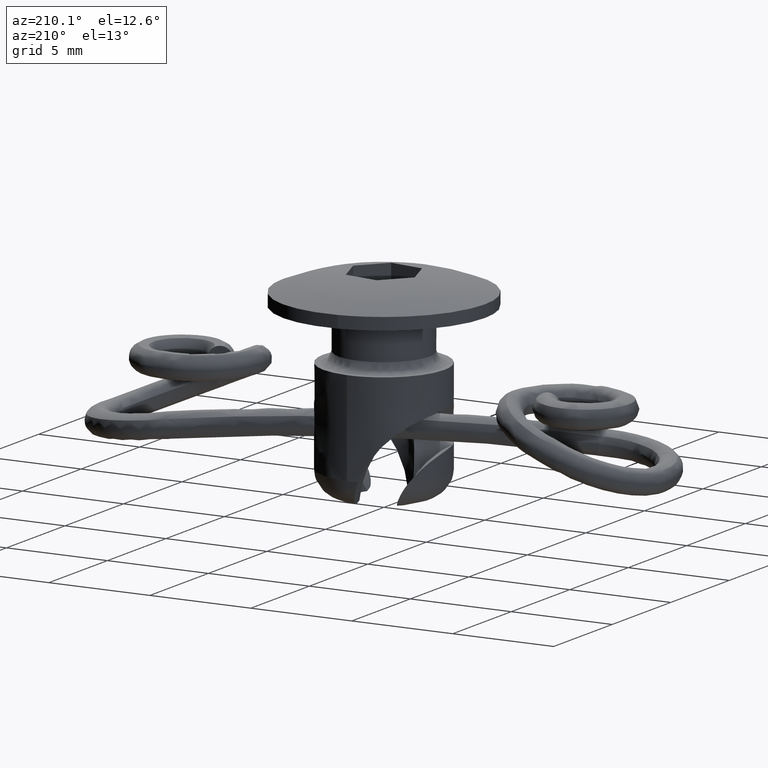
[diagram: clean part render]
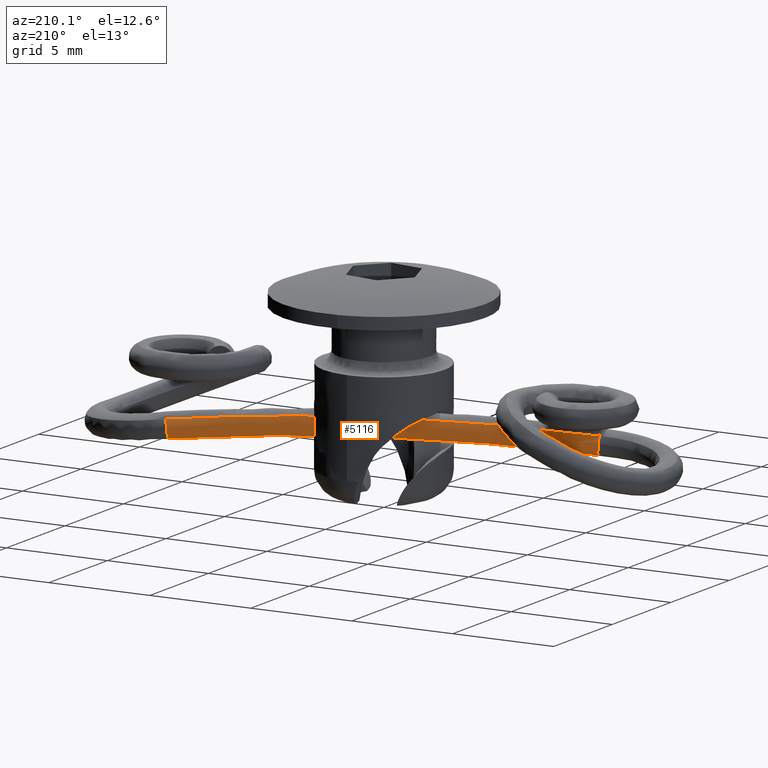
[diagram: same view with one face highlighted and labeled with its STEP entity id]
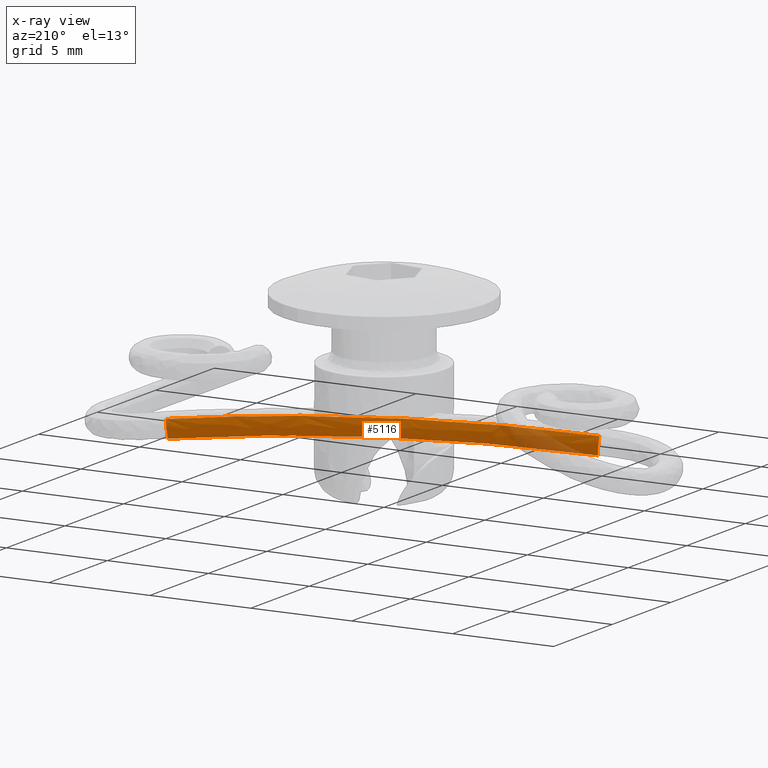
[diagram: x-ray of the same camera — body ghosted, the highlighted face saturated]
A machine part, auxiliary view. The second image highlights one B-rep face of the part: STEP entity #5116.
The next image is the same camera in x-ray: the body ghosted, the highlighted face saturated — about 12% of this face is hidden behind the body in this view.
In plain terms, the highlighted face is a freeform B-spline surface patch.
Its self-contained STEP definition (entity closure, byte-faithful):
#4762=CARTESIAN_POINT('',(-9.052727951586524,-2.789468148499481,-0.070616102418248));
#4763=VERTEX_POINT('',#4762);
#4789=CARTESIAN_POINT('',(-8.878890207489556,-2.979421435673762,-0.980622937705144));
#4790=VERTEX_POINT('',#4789);
#4791=CARTESIAN_POINT('',(-9.052727951586524,-2.789468148499481,-0.070616102418248));
#4792=CARTESIAN_POINT('',(-9.055303894186736,-2.781025139370642,-0.082041355090307));
#4793=CARTESIAN_POINT('',(-9.057655208501517,-2.773014176170491,-0.093816720211530));
#4794=CARTESIAN_POINT('',(-9.065491694534806,-2.745092895402590,-0.138471446225786));
#4795=CARTESIAN_POINT('',(-9.069622604483348,-2.727681889790864,-0.173928171500281));
#4796=CARTESIAN_POINT('',(-9.074497617147349,-2.700119379930463,-0.246820405723112));
#4797=CARTESIAN_POINT('',(-9.075312601725335,-2.689779901737084,-0.284374014896111));
#4798=CARTESIAN_POINT('',(-9.073906652724226,-2.675540818789088,-0.361553451565428));
#4799=CARTESIAN_POINT('',(-9.071679877110494,-2.671789767808547,-0.400580635368091));
#4800=CARTESIAN_POINT('',(-9.064486917477431,-2.670650419221944,-0.478062328582748));
#4801=CARTESIAN_POINT('',(-9.059464816484208,-2.673271360659927,-0.517039078351167));
#4802=CARTESIAN_POINT('',(-9.046793343747401,-2.684839438097906,-0.593452476464065));
#4803=CARTESIAN_POINT('',(-9.039231247496117,-2.693673925689496,-0.630508755140494));
#4804=CARTESIAN_POINT('',(-9.026017484765633,-2.711578687216341,-0.684338373601555));
#4805=CARTESIAN_POINT('',(-9.021298522370676,-2.718328926364071,-0.701986669278097));
#4806=CARTESIAN_POINT('',(-9.011192168334752,-2.733492089435803,-0.736656212818848));
#4807=CARTESIAN_POINT('',(-9.005790862180939,-2.741931719649130,-0.753699394581058));
#4808=CARTESIAN_POINT('',(-8.988926022088217,-2.769253717632536,-0.802619789221144));
#4809=CARTESIAN_POINT('',(-8.976695742826248,-2.790280832417077,-0.832726694296828));
#4810=CARTESIAN_POINT('',(-8.950122474991138,-2.838355097718130,-0.887574973368662));
#4811=CARTESIAN_POINT('',(-8.935570083044322,-2.865838222372753,-0.912495712723965));
#4812=CARTESIAN_POINT('',(-8.907101721985805,-2.921677845969599,-0.952064523967577));
#4813=CARTESIAN_POINT('',(-8.893191719525660,-2.949778142931533,-0.967786186371771));
#4814=CARTESIAN_POINT('',(-8.878890207489556,-2.979421435673762,-0.980622937705144));
#4815=B_SPLINE_CURVE_WITH_KNOTS('',3,(#4791,#4792,#4793,#4794,#4795,#4796,#4797,#4798,#4799,#4800,#4801,#4802,#4803,#4804,#4805,#4806,#4807,#4808,#4809,#4810,#4811,#4812,#4813,#4814),.UNSPECIFIED.,.F.,.U.,(4,2,2,2,2,2,2,2,2,2,2,4),(0.289206690772922,0.312500000000002,0.375000000000002,0.437500000000002,0.500000000000001,0.562500000000001,0.625000000000001,0.656250000000000,0.687500000000000,0.750000000000001,0.812500000000001,0.868849524865877),.UNSPECIFIED.);
#4816=EDGE_CURVE('',#4763,#4790,#4815,.T.);
#5011=CARTESIAN_POINT('',(-9.006048405365958,-3.025703383126476,-0.993116206837282));
#5012=CARTESIAN_POINT('',(-9.023408879969612,-2.982957046913163,-0.974762413088343));
#5013=CARTESIAN_POINT('',(-9.040464384676396,-2.942672530215936,-0.950389044187958));
#5014=CARTESIAN_POINT('',(-9.158356369705112,-2.678580929267353,-0.728664816093792));
#5015=CARTESIAN_POINT('',(-9.210628444148938,-2.642666145198155,-0.329432377547722));
#5016=CARTESIAN_POINT('',(-9.166448144306321,-2.830858420373813,-0.081789153421733));
#5017=CARTESIAN_POINT('',(-8.958654617775125,-3.008453467800313,-0.988459584093610));
#5018=CARTESIAN_POINT('',(-8.976015727778529,-2.965707362853427,-0.970105852763225));
#5019=CARTESIAN_POINT('',(-8.993072076279882,-2.925423153272082,-0.945732566754391));
#5020=CARTESIAN_POINT('',(-9.110971737296730,-2.661334346152645,-0.724009092731750));
#5021=CARTESIAN_POINT('',(-9.163257632977611,-2.625424592598648,-0.324778011987457));
#5022=CARTESIAN_POINT('',(-9.119085906424822,-2.813619988194330,-0.077135630120394));
#5023=CARTESIAN_POINT('',(-8.911141256667380,-2.991160031305046,-0.983791186747881));
#5024=CARTESIAN_POINT('',(-8.928507019586782,-2.948415619879843,-0.965437912561471));
#5025=CARTESIAN_POINT('',(-8.945569547041840,-2.908133659252076,-0.941065233630388));
#5026=CARTESIAN_POINT('',(-9.063525417923575,-2.644065310835329,-0.719347282200259));
#5027=CARTESIAN_POINT('',(-9.115912524026395,-2.608192394835306,-0.320126145390967));
#5028=CARTESIAN_POINT('',(-9.071803578134297,-2.796410640706015,-0.072489931759001));
#5029=CARTESIAN_POINT('',(-3.009275934053959,-0.843058302020052,-0.403930297025632));
#5030=CARTESIAN_POINT('',(-3.026108121263782,-0.800119685061273,-0.385524602030129));
#5031=CARTESIAN_POINT('',(-3.042462073816853,-0.759579824449593,-0.361082309070787));
#5032=CARTESIAN_POINT('',(-3.153972047792050,-0.493165363146523,-0.138731076391322));
#5033=CARTESIAN_POINT('',(-3.194752794211010,-0.453068080790566,0.261630348858755));
#5034=CARTESIAN_POINT('',(-3.143444442525897,-0.638665959168025,0.509973888353399));
#5035=CARTESIAN_POINT('',(2.847146821280134,1.288503697545641,-0.403930275851332));
#5036=CARTESIAN_POINT('',(2.832440745327959,1.332216155149701,-0.385524588111543));
#5037=CARTESIAN_POINT('',(2.818910214355942,1.373783656422345,-0.361082302678307));
#5038=CARTESIAN_POINT('',(2.733084871869665,1.649546552212105,-0.138731125361762));
#5039=CARTESIAN_POINT('',(2.738551390498805,1.706476450121820,0.261630256467083));
#5040=CARTESIAN_POINT('',(2.818546846870800,1.531319816303081,0.509973795958792));
#5041=CARTESIAN_POINT('',(8.749045023024626,3.436617393848361,-0.983794385239148));
#5042=CARTESIAN_POINT('',(8.734872525438686,3.480524057953002,-0.965441122242346));
#5043=CARTESIAN_POINT('',(8.722050572988499,3.522349460527206,-0.941068455002746));
#5044=CARTESIAN_POINT('',(8.642671160909199,3.800458481398114,-0.719350590251441));
#5045=CARTESIAN_POINT('',(8.659744101986583,3.861612768508496,-0.320129525015097));
#5046=CARTESIAN_POINT('',(8.746939004260899,3.689076516779222,-0.072493315323706));
#5047=CARTESIAN_POINT('',(8.796591632121672,3.453922931613167,-0.988466049521667));
#5048=CARTESIAN_POINT('',(8.782414472168643,3.497827898756210,-0.970112328437046));
#5049=CARTESIAN_POINT('',(8.769586328213560,3.539651047808579,-0.945739052870696));
#5050=CARTESIAN_POINT('',(8.690150592088969,3.817739568418553,-0.724015654192115));
#5051=CARTESIAN_POINT('',(8.707122117143175,3.878856943142273,-0.324784624729061));
#5052=CARTESIAN_POINT('',(8.794254111217777,3.706297794717606,-0.077142234271913));
#5053=CARTESIAN_POINT('',(8.844018232821425,3.471184789925521,-0.993125896270101));
#5054=CARTESIAN_POINT('',(8.829840442628754,3.515089527680263,-0.974772113264880));
#5055=CARTESIAN_POINT('',(8.817011461731369,3.556912372110769,-0.950398755470855));
#5056=CARTESIAN_POINT('',(8.737568111952223,3.834998121579142,-0.728674608776211));
#5057=CARTESIAN_POINT('',(8.754525928000028,3.896110506636250,-0.329442232484229));
#5058=CARTESIAN_POINT('',(8.841649418398399,3.723548263128823,-0.081799006607888));
#5059=B_SPLINE_SURFACE_WITH_KNOTS('',3,3,((#5011,#5017,#5023,#5029,#5035,#5041,#5047,#5053),(#5012,#5018,#5024,#5030,#5036,#5042,#5048,#5054),(#5013,#5019,#5025,#5031,#5037,#5043,#5049,#5055),(#5014,#5020,#5026,#5032,#5038,#5044,#5050,#5056),(#5015,#5021,#5027,#5033,#5039,#5045,#5051,#5057),(#5016,#5022,#5028,#5034,#5040,#5046,#5052,#5058)),.UNSPECIFIED.,.F.,.F.,.U.,(4,2,4),(4,2,2,4),(0.0,0.150795954072507,1.093270667025673),(0.0,0.152517005416773,19.051378743920470,19.204001881067398),.UNSPECIFIED.);
#5060=ORIENTED_EDGE('',*,*,#4816,.F.);
#5061=CARTESIAN_POINT('',(8.671416379380403,3.661589230002595,-0.065078477133593));
#5062=VERTEX_POINT('',#5061);
#5063=CARTESIAN_POINT('',(-9.052727951586524,-2.789468148499481,-0.070616102418248));
#5064=CARTESIAN_POINT('',(-9.043272263840759,-2.786026561528491,-0.069687063938073));
#5065=CARTESIAN_POINT('',(-9.033811555115664,-2.782583147071497,-0.068757537969981));
#5066=CARTESIAN_POINT('',(-3.152787523197503,-0.642066642245922,0.509055434655595));
#5067=CARTESIAN_POINT('',(2.799603282181113,1.524425229400120,0.509971669903831));
#5068=CARTESIAN_POINT('',(8.671416379380403,3.661589230002595,-0.065078477133593));
#5069=B_SPLINE_CURVE_WITH_KNOTS('',3,(#5063,#5064,#5065,#5066,#5067,#5068),.UNSPECIFIED.,.F.,.U.,(4,2,4),(-0.001609919353250,0.0,0.998411306176415),.UNSPECIFIED.);
#5070=EDGE_CURVE('',#4763,#5062,#5069,.T.);
#5071=ORIENTED_EDGE('',*,*,#5070,.T.);
#5072=CARTESIAN_POINT('',(8.688269160099740,3.414496775028216,-0.977824043489854));
#5073=VERTEX_POINT('',#5072);
#5074=CARTESIAN_POINT('',(8.688269160099740,3.414496775028216,-0.977824043489854));
#5075=CARTESIAN_POINT('',(8.686803652539519,3.418220948790992,-0.976208352685754));
#5076=CARTESIAN_POINT('',(8.685348941728051,3.421931488650999,-0.974546849793886));
#5077=CARTESIAN_POINT('',(8.670781856184854,3.459230205052796,-0.957313120259023));
#5078=CARTESIAN_POINT('',(8.658825922371248,3.491005036519455,-0.938303806894087));
#5079=CARTESIAN_POINT('',(8.637364914682831,3.550688228164610,-0.892928872354580));
#5080=CARTESIAN_POINT('',(8.627856793560131,3.578679377512856,-0.866235594309530));
#5081=CARTESIAN_POINT('',(8.612200644378831,3.627994771059209,-0.808408975505420));
#5082=CARTESIAN_POINT('',(8.605886088331467,3.649759098608439,-0.777023343236598));
#5083=CARTESIAN_POINT('',(8.598526817299277,3.678346155307111,-0.726478608775275));
#5084=CARTESIAN_POINT('',(8.596421096487529,3.687234093202136,-0.708946146899125));
#5085=CARTESIAN_POINT('',(8.592986841429262,3.703326161672763,-0.673416017438394));
#5086=CARTESIAN_POINT('',(8.591647944669402,3.710562046030978,-0.655384069813239));
#5087=CARTESIAN_POINT('',(8.588702166796377,3.729971593618845,-0.600531247158711));
#5088=CARTESIAN_POINT('',(8.588154077585328,3.739872932384560,-0.562961888265050));
#5089=CARTESIAN_POINT('',(8.589865855100680,3.753633021623895,-0.485833067235744));
#5090=CARTESIAN_POINT('',(8.592136657077312,3.757361466052728,-0.446730296277304));
#5091=CARTESIAN_POINT('',(8.599392041635392,3.758366088520318,-0.369237953273678));
#5092=CARTESIAN_POINT('',(8.604429558540870,3.755647411511354,-0.330292263099642));
#5093=CARTESIAN_POINT('',(8.617314606636366,3.743352583074445,-0.253934780353469));
#5094=CARTESIAN_POINT('',(8.625065386022726,3.733899618829622,-0.216961710264543));
#5095=CARTESIAN_POINT('',(8.638811284888798,3.714380912254771,-0.163450998488586));
#5096=CARTESIAN_POINT('',(8.643783714636529,3.706922702665004,-0.145835468557547));
#5097=CARTESIAN_POINT('',(8.654315407529793,3.690357865096108,-0.111907614761802));
#5098=CARTESIAN_POINT('',(8.659860519555950,3.681278838683284,-0.095617466994142));
#5099=CARTESIAN_POINT('',(8.667566266798634,3.668216426879827,-0.074955588663781));
#5100=CARTESIAN_POINT('',(8.669476710304757,3.664944324296421,-0.069981908680130));
#5101=CARTESIAN_POINT('',(8.671416379380403,3.661589230002595,-0.065078477133593));
#5102=B_SPLINE_CURVE_WITH_KNOTS('',3,(#5074,#5075,#5076,#5077,#5078,#5079,#5080,#5081,#5082,#5083,#5084,#5085,#5086,#5087,#5088,#5089,#5090,#5091,#5092,#5093,#5094,#5095,#5096,#5097,#5098,#5099,#5100,#5101),.UNSPECIFIED.,.F.,.U.,(4,2,2,2,2,2,2,2,2,2,2,2,2,4),(0.118125959600377,0.125000000000001,0.187500000000001,0.250000000000002,0.312500000000002,0.343750000000002,0.375000000000002,0.437500000000002,0.500000000000002,0.562500000000003,0.625000000000003,0.656250000000003,0.687500000000003,0.697592887918817),.UNSPECIFIED.);
#5103=EDGE_CURVE('',#5073,#5062,#5102,.T.);
#5104=ORIENTED_EDGE('',*,*,#5103,.F.);
#5105=CARTESIAN_POINT('',(-8.878890207489556,-2.979421435673762,-0.980622937705144));
#5106=CARTESIAN_POINT('',(-8.873888625797925,-2.977601192460575,-0.980131101324090));
#5107=CARTESIAN_POINT('',(-8.868889580105796,-2.975781689962798,-0.979639940756316));
#5108=CARTESIAN_POINT('',(-3.013774350872859,-0.844695590643142,-0.404372268476413));
#5109=CARTESIAN_POINT('',(2.838147214666909,1.285228111019665,-0.403930615474239));
#5110=CARTESIAN_POINT('',(8.688269160099740,3.414496775028216,-0.977824043489854));
#5111=B_SPLINE_CURVE_WITH_KNOTS('',3,(#5105,#5106,#5107,#5108,#5109,#5110),.UNSPECIFIED.,.F.,.U.,(4,2,4),(-0.000853356475951,0.0,0.999231646343260),.UNSPECIFIED.);
#5112=EDGE_CURVE('',#4790,#5073,#5111,.T.);
#5113=ORIENTED_EDGE('',*,*,#5112,.F.);
#5114=EDGE_LOOP('',(#5060,#5071,#5104,#5113));
#5115=FACE_OUTER_BOUND('',#5114,.T.);
#5116=ADVANCED_FACE('',(#5115),#5059,.T.);